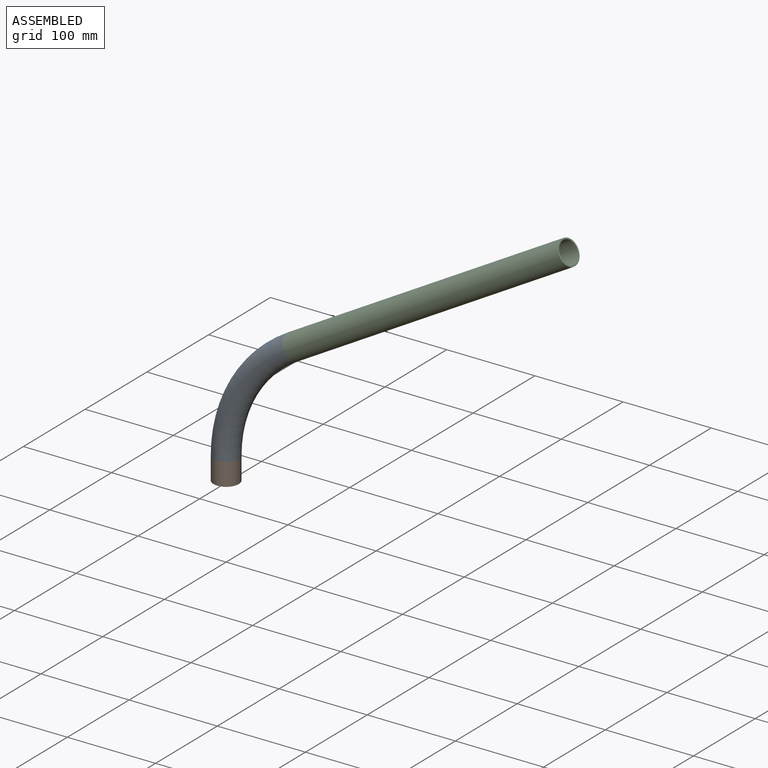
[diagram: assembled view]
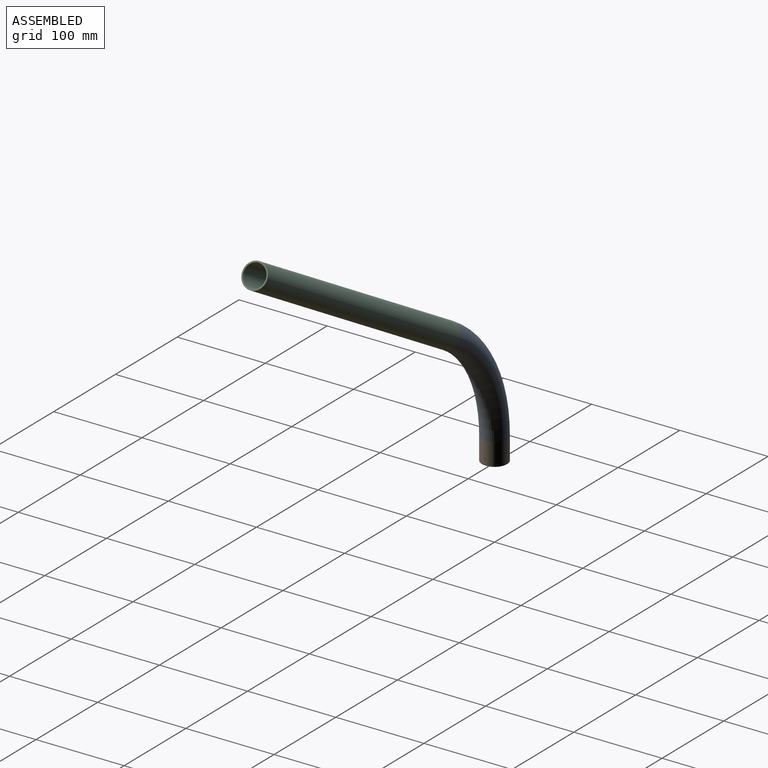
[diagram: assembled view, second angle]
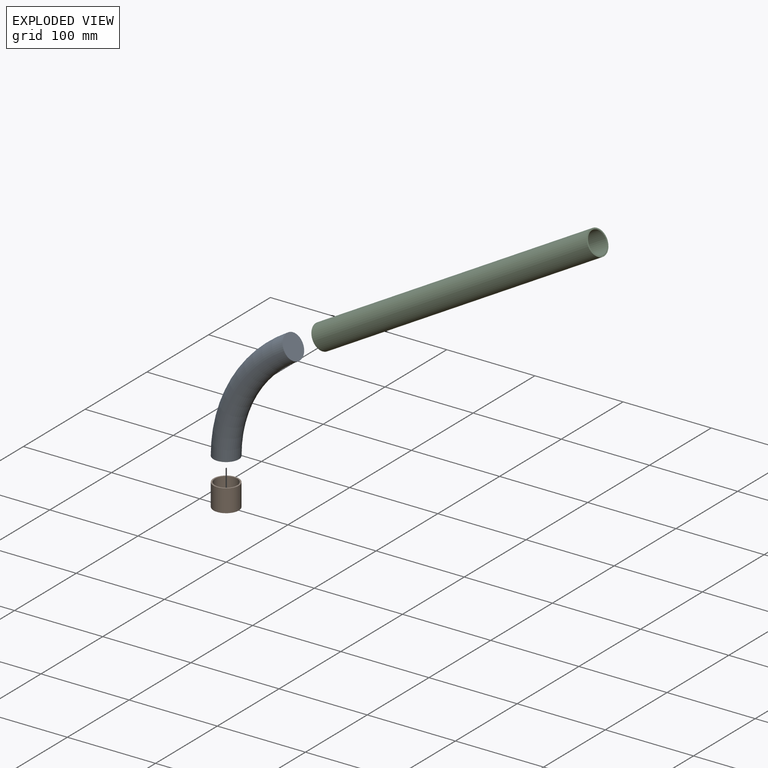
[diagram: exploded view]
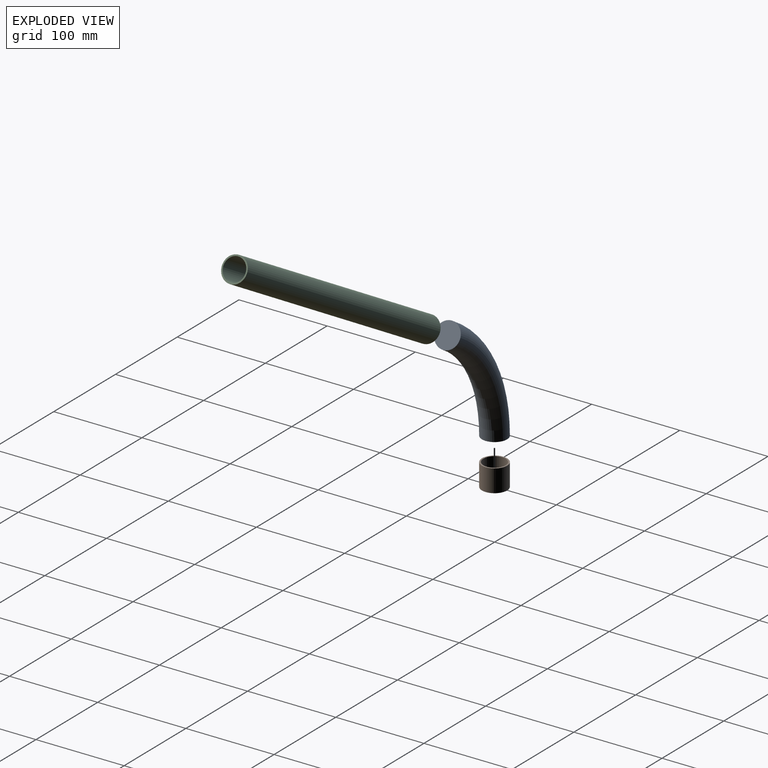
[diagram: exploded view, second angle]
ASSEMBLY  parts=3 mates=2
PART A: 3 faces, bbox 111.4x28.6x156.2 mm
  f0: torus R=152.4mm, axis (0,-1,0), area 14326.8mm2, adj f1,f2
  f1: plane 28.58x24.75mm, normal (0.87,0,0.5), area 641.3mm2, adj f0
  f2: plane 28.58x28.58mm, normal (0,0,-1), area 641.3mm2, adj f0
PART B: 4 faces, bbox 28.6x28.6x25.4 mm
  f0: cylinder r=12.7mm len=25.4mm, axis (0,0,-1), area 2026.8mm2, adj f2,f3
  f1: cylinder r=14.29mm len=28.58mm, axis (0,0,-1), area 2280.2mm2, adj f2,f3
  f2: plane 28.58x28.58mm, normal (0,0,1), area 134.6mm2, adj f0,f1
  f3: plane 28.58x28.58mm, normal (0,0,-1), area 134.6mm2, adj f0,f1
PART C: 4 faces, bbox 28.6x28.6x360.7 mm
  f0: cylinder r=12.7mm len=360.68mm, axis (0,0,-1), area 28781mm2, adj f2,f3
  f1: cylinder r=14.29mm len=360.68mm, axis (0,0,-1), area 32378.6mm2, adj f2,f3
  f2: plane 28.58x28.58mm, normal (0,0,1), area 134.6mm2, adj f0,f1
  f3: plane 28.58x28.58mm, normal (0,0,-1), area 134.6mm2, adj f0,f1
PLACE A t=(152.4,0,25.4)mm
PLACE B at identity fixed
PLACE C rot(axis=(0,1,0),60deg) t=(76.2,0,157.38)mm
MATE fastened A.f1 <-> C.f0  axis (0.87,0,0.5) through (76.2,0,157.38)mm
MATE fastened A.f2 <-> B.f0  axis (0,0,-1) through (0,0,25.4)mm
